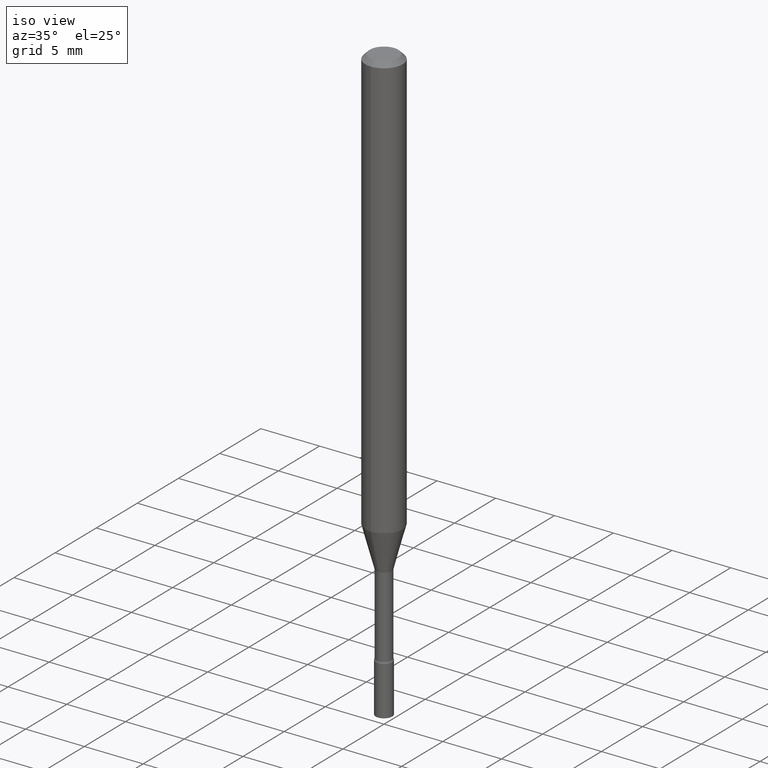
[diagram: clean part render]
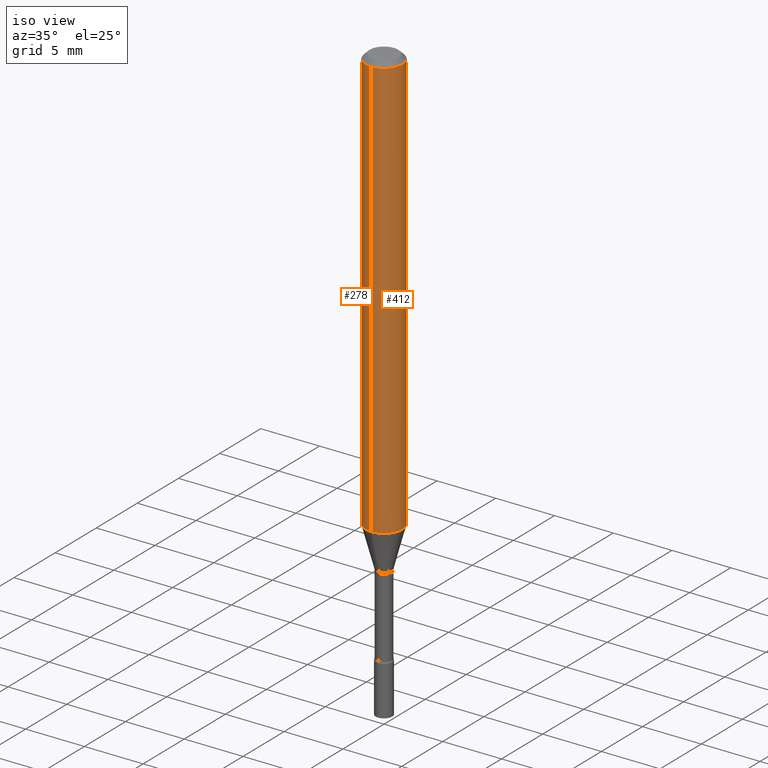
[diagram: same view with one multi-face feature highlighted, each face labeled with its STEP entity id]
A machine part, iso view. The highlighted faces form ONE feature: a constant-radius fillet chain: 2 tangent blend faces with common blend radius 1.5875 mm. The faces share edges in the B-rep.
Their STEP definitions:
[1] entity #278 (Cylinder):
#10 = DIRECTION ( 'NONE',  ( -6.982962677686265922E-15, -1.000000000000000000, 4.370956789862821150E-15 ) ) ;
#11 = DIRECTION ( 'NONE',  ( -2.445551873642688287E-29, 3.491362381516025357E-15, 1.000000000000000000 ) ) ;
#22 = CARTESIAN_POINT ( 'NONE',  ( -4.364351673553916201E-16, -0.06250000000000000000, 2.182101488447516095E-16 ) ) ;
#36 = CARTESIAN_POINT ( 'NONE',  ( 0.000000000000000000, 0.000000000000000000, 0.000000000000000000 ) ) ;
#51 = CARTESIAN_POINT ( 'NONE',  ( 3.668327810464039174E-31, -5.237043572274049745E-17, -0.01500000000000003067 ) ) ;
#56 = CARTESIAN_POINT ( 'NONE',  ( 4.440892098500625669E-16, 0.06250000000000000000, -2.182101488447516095E-16 ) ) ;
#74 = EDGE_LOOP ( 'NONE', ( #363, #243, #283, #220 ) ) ;
#91 = EDGE_CURVE ( 'NONE', #123, #466, #381, .T. ) ;
#101 = CARTESIAN_POINT ( 'NONE',  ( 4.440892098500972274E-16, 0.06249999999999501094, -1.423220337902601162 ) ) ;
#123 = VERTEX_POINT ( 'NONE', #101 ) ;
#129 = VECTOR ( 'NONE', #317, 39.37007874015748143 ) ;
#133 = CIRCLE ( 'NONE', #409, 0.06250000000000000000 ) ;
#141 = CARTESIAN_POINT ( 'NONE',  ( 3.480559163964085406E-29, -4.968977948361667747E-15, -1.423220337902600718 ) ) ;
#172 = DIRECTION ( 'NONE',  ( -2.445551873642688007E-29, 3.491362381516025751E-15, 1.000000000000000000 ) ) ;
#176 = CYLINDRICAL_SURFACE ( 'NONE', #448, 0.06250000000000000000 ) ;
#183 = EDGE_CURVE ( 'NONE', #123, #479, #362, .T. ) ;
#198 = EDGE_CURVE ( 'NONE', #466, #405, #133, .T. ) ;
#220 = ORIENTED_EDGE ( 'NONE', *, *, #198, .F. ) ;
#243 = ORIENTED_EDGE ( 'NONE', *, *, #183, .T. ) ;
#257 = CARTESIAN_POINT ( 'NONE',  ( -4.364351673553912750E-16, -0.06250000000000005551, -0.01499999999999981209 ) ) ;
#265 = CARTESIAN_POINT ( 'NONE',  ( -4.364351673553569595E-16, -0.06250000000000498213, -1.423220337902600496 ) ) ;
#278 = ADVANCED_FACE ( 'NONE', ( #326 ), #176, .T. ) ;
#283 = ORIENTED_EDGE ( 'NONE', *, *, #376, .T. ) ;
#288 = LINE ( 'NONE', #22, #129 ) ;
#317 = DIRECTION ( 'NONE',  ( -2.445551873642688287E-29, 3.491362381516025357E-15, 1.000000000000000000 ) ) ;
#326 = FACE_OUTER_BOUND ( 'NONE', #74, .T. ) ;
#340 = DIRECTION ( 'NONE',  ( -6.982962677686265922E-15, -1.000000000000000000, 3.483106191921935554E-15 ) ) ;
#349 = CARTESIAN_POINT ( 'NONE',  ( 4.440892098500976219E-16, 0.06249999999999995143, -0.01500000000000024751 ) ) ;
#362 = CIRCLE ( 'NONE', #490, 0.06250000000000000000 ) ;
#363 = ORIENTED_EDGE ( 'NONE', *, *, #91, .F. ) ;
#375 = DIRECTION ( 'NONE',  ( -2.445551873642688007E-29, 3.491362381516025751E-15, 1.000000000000000000 ) ) ;
#376 = EDGE_CURVE ( 'NONE', #479, #405, #288, .T. ) ;
#381 = LINE ( 'NONE', #56, #436 ) ;
#405 = VERTEX_POINT ( 'NONE', #257 ) ;
#409 = AXIS2_PLACEMENT_3D ( 'NONE', #51, #375, #340 ) ;
#436 = VECTOR ( 'NONE', #11, 39.37007874015748143 ) ;
#448 = AXIS2_PLACEMENT_3D ( 'NONE', #36, #172, #518 ) ;
#459 = DIRECTION ( 'NONE',  ( -2.445551873642688007E-29, 3.491362381516025751E-15, 1.000000000000000000 ) ) ;
#466 = VERTEX_POINT ( 'NONE', #349 ) ;
#479 = VERTEX_POINT ( 'NONE', #265 ) ;
#490 = AXIS2_PLACEMENT_3D ( 'NONE', #141, #459, #10 ) ;
#518 = DIRECTION ( 'NONE',  ( -6.982962677686265922E-15, -1.000000000000000000, 3.491362381516025751E-15 ) ) ;
[2] entity #412 (Cylinder):
#11 = DIRECTION ( 'NONE',  ( -2.445551873642688287E-29, 3.491362381516025357E-15, 1.000000000000000000 ) ) ;
#12 = CYLINDRICAL_SURFACE ( 'NONE', #305, 0.06250000000000000000 ) ;
#22 = CARTESIAN_POINT ( 'NONE',  ( -4.364351673553916201E-16, -0.06250000000000000000, 2.182101488447516095E-16 ) ) ;
#29 = EDGE_LOOP ( 'NONE', ( #296, #414, #160, #506 ) ) ;
#56 = CARTESIAN_POINT ( 'NONE',  ( 4.440892098500625669E-16, 0.06250000000000000000, -2.182101488447516095E-16 ) ) ;
#91 = EDGE_CURVE ( 'NONE', #123, #466, #381, .T. ) ;
#97 = CARTESIAN_POINT ( 'NONE',  ( 3.480559163964085406E-29, -4.968977948361667747E-15, -1.423220337902600718 ) ) ;
#101 = CARTESIAN_POINT ( 'NONE',  ( 4.440892098500972274E-16, 0.06249999999999501094, -1.423220337902601162 ) ) ;
#123 = VERTEX_POINT ( 'NONE', #101 ) ;
#129 = VECTOR ( 'NONE', #317, 39.37007874015748143 ) ;
#143 = DIRECTION ( 'NONE',  ( -2.445551873642688007E-29, 3.491362381516025751E-15, 1.000000000000000000 ) ) ;
#159 = DIRECTION ( 'NONE',  ( -6.982962677686265922E-15, -1.000000000000000000, 3.491362381516025751E-15 ) ) ;
#160 = ORIENTED_EDGE ( 'NONE', *, *, #319, .F. ) ;
#195 = CIRCLE ( 'NONE', #380, 0.06250000000000000000 ) ;
#247 = CARTESIAN_POINT ( 'NONE',  ( 0.000000000000000000, 0.000000000000000000, 0.000000000000000000 ) ) ;
#257 = CARTESIAN_POINT ( 'NONE',  ( -4.364351673553912750E-16, -0.06250000000000005551, -0.01499999999999981209 ) ) ;
#261 = FACE_OUTER_BOUND ( 'NONE', #29, .T. ) ;
#265 = CARTESIAN_POINT ( 'NONE',  ( -4.364351673553569595E-16, -0.06250000000000498213, -1.423220337902600496 ) ) ;
#288 = LINE ( 'NONE', #22, #129 ) ;
#293 = DIRECTION ( 'NONE',  ( -6.982962677686265922E-15, -1.000000000000000000, 3.483106191921935554E-15 ) ) ;
#296 = ORIENTED_EDGE ( 'NONE', *, *, #476, .T. ) ;
#305 = AXIS2_PLACEMENT_3D ( 'NONE', #247, #486, #159 ) ;
#317 = DIRECTION ( 'NONE',  ( -2.445551873642688287E-29, 3.491362381516025357E-15, 1.000000000000000000 ) ) ;
#319 = EDGE_CURVE ( 'NONE', #405, #466, #195, .T. ) ;
#349 = CARTESIAN_POINT ( 'NONE',  ( 4.440892098500976219E-16, 0.06249999999999995143, -0.01500000000000024751 ) ) ;
#376 = EDGE_CURVE ( 'NONE', #479, #405, #288, .T. ) ;
#380 = AXIS2_PLACEMENT_3D ( 'NONE', #397, #511, #293 ) ;
#381 = LINE ( 'NONE', #56, #436 ) ;
#383 = DIRECTION ( 'NONE',  ( -6.982962677686265922E-15, -1.000000000000000000, 4.370956789862821150E-15 ) ) ;
#397 = CARTESIAN_POINT ( 'NONE',  ( 3.668327810464039174E-31, -5.237043572274049745E-17, -0.01500000000000003067 ) ) ;
#405 = VERTEX_POINT ( 'NONE', #257 ) ;
#412 = ADVANCED_FACE ( 'NONE', ( #261 ), #12, .T. ) ;
#414 = ORIENTED_EDGE ( 'NONE', *, *, #91, .T. ) ;
#436 = VECTOR ( 'NONE', #11, 39.37007874015748143 ) ;
#444 = CIRCLE ( 'NONE', #502, 0.06250000000000000000 ) ;
#466 = VERTEX_POINT ( 'NONE', #349 ) ;
#476 = EDGE_CURVE ( 'NONE', #479, #123, #444, .T. ) ;
#479 = VERTEX_POINT ( 'NONE', #265 ) ;
#486 = DIRECTION ( 'NONE',  ( -2.445551873642688007E-29, 3.491362381516025751E-15, 1.000000000000000000 ) ) ;
#502 = AXIS2_PLACEMENT_3D ( 'NONE', #97, #143, #383 ) ;
#506 = ORIENTED_EDGE ( 'NONE', *, *, #376, .F. ) ;
#511 = DIRECTION ( 'NONE',  ( -2.445551873642688007E-29, 3.491362381516025751E-15, 1.000000000000000000 ) ) ;